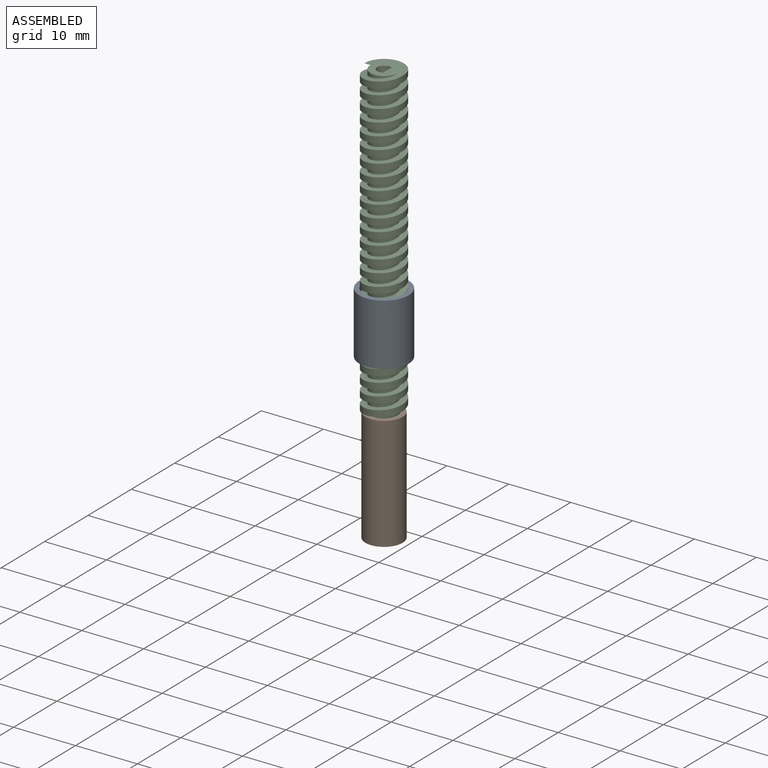
[diagram: assembled view]
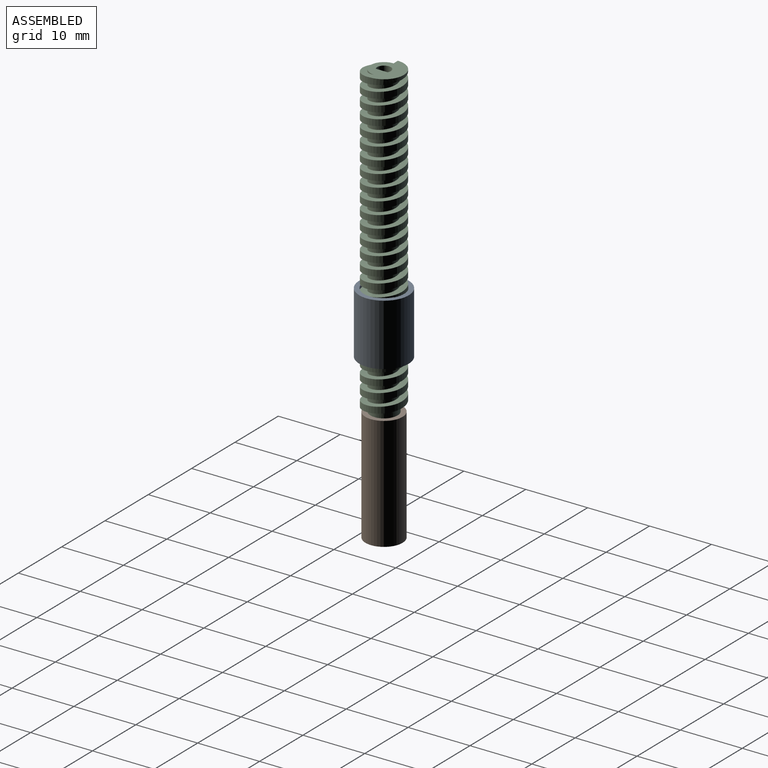
[diagram: assembled view, second angle]
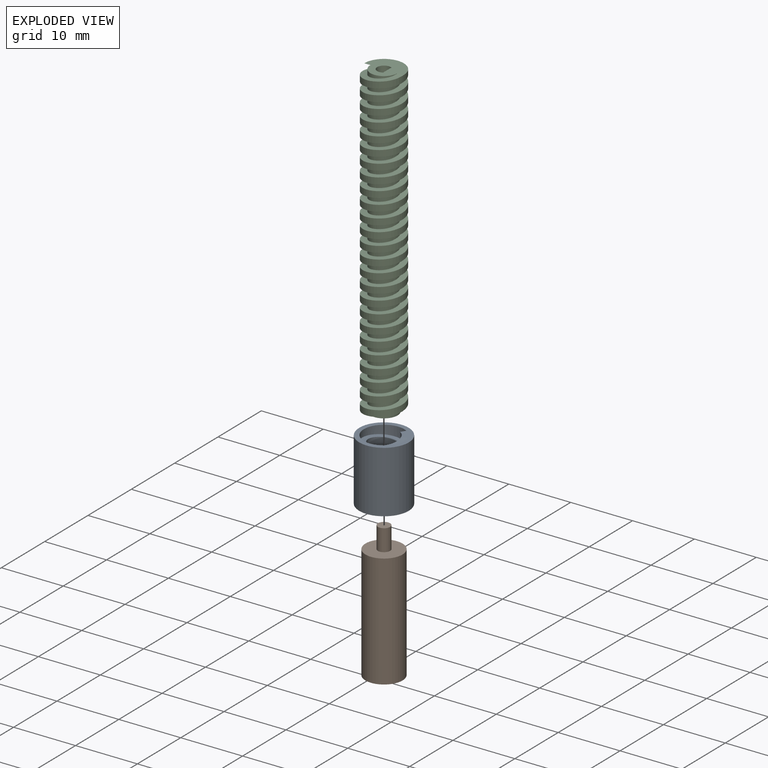
[diagram: exploded view]
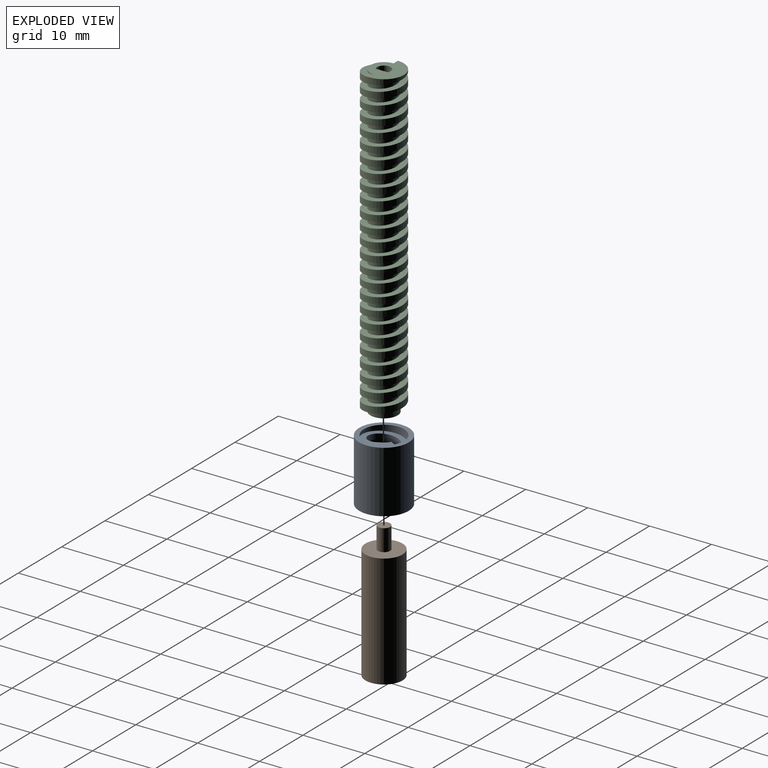
[diagram: exploded view, second angle]
ASSEMBLY  parts=3 mates=2
PART A: 9 faces, bbox 8x8x10.3 mm
  f0: plane 0.78x0.67mm, normal (-0.87,0.5,0), area 0.6mm2, adj f2,f3,f5,f8
  f1: bspline ~9.77x6.5mm, area 77.9mm2, adj f2,f3,f5,f7
  f2: cylinder r=2.35mm len=10mm, axis (0,0,1), area 65mm2, adj f0,f1,f5,f6,f7,f8
  f3: cylinder r=3.25mm len=10mm, axis (0,0,-1), area 115mm2, adj f0,f1,f5,f6,f7,f8
  f4: cylinder r=4mm len=10mm, axis (0,0,-1), area 251.3mm2, adj f5,f6
  f5: plane 8x8mm, normal (0,0,1), area 18.9mm2, adj f0,f1,f2,f3,f4
  f6: plane 8x8mm, normal (0,0,-1), area 22.4mm2, adj f2,f3,f4,f7,f8
  f7: plane 0.78x0.45mm, normal (0.87,-0.5,0), area 0.2mm2, adj f1,f2,f3,f6
  f8: bspline ~9.67x7.51mm, area 74.4mm2, adj f0,f2,f3,f6
PART B: 5 faces, bbox 6x6x21.9 mm
  f0: cylinder r=1mm len=3.5mm, axis (0,0,-1), area 22mm2, adj f1,f3
  f1: plane 2x2mm, normal (0,0,1), area 3.1mm2, adj f0
  f2: cylinder r=3mm len=18.4mm, axis (0,0,-1), area 346.8mm2, adj f3,f4
  f3: plane 6x6mm, normal (0,0,1), area 25.1mm2, adj f0,f2
  f4: plane 6x6mm, normal (0,0,-1), area 28.3mm2, adj f2
PART C: 9 faces, bbox 6.4x7.4x50.3 mm
  f0: cylinder r=3.2mm len=50mm, axis (0,0,1), area 423.3mm2, adj f1,f5,f7,f8
  f1: bspline ~49.33x7.39mm, area 418.7mm2, adj f0,f4,f5,f7
  f2: cylinder r=1.1mm len=50mm, axis (0,0,-1), area 227.5mm2, adj f3,f5,f6
  f3: plane 50x1.93mm, normal (-1,0,0), area 96.7mm2, adj f2,f5,f6
  f4: cylinder r=2.2mm len=50mm, axis (0,0,-1), area 295.5mm2, adj f1,f5,f6,f7,f8
  f5: plane 6.4x5.4mm, normal (0,0,1), area 20.7mm2, adj f0,f1,f2,f3,f4,f8
  f6: plane 4.4x4.4mm, normal (0,0,-1), area 12.2mm2, adj f2,f3,f4
  f7: plane 1x1mm, normal (0,1,0), area 1mm2, adj f0,f1,f4,f8
  f8: bspline ~50x7.39mm, area 425.9mm2, adj f0,f4,f5,f7
PLACE A t=(-3.64,-6.44,12.68)mm
PLACE B t=(-3.64,-6.44,-13.74)mm
PLACE C t=(-3.64,-6.44,4.66)mm
MATE fastened C.f0 <-> B.f0  axis (0,0,-1) through (-3.64,-6.44,4.66)mm
MATE cylindrical C.f0 <-> A.f2  axis (0,0,-1) through (-3.64,-6.44,4.66)mm
